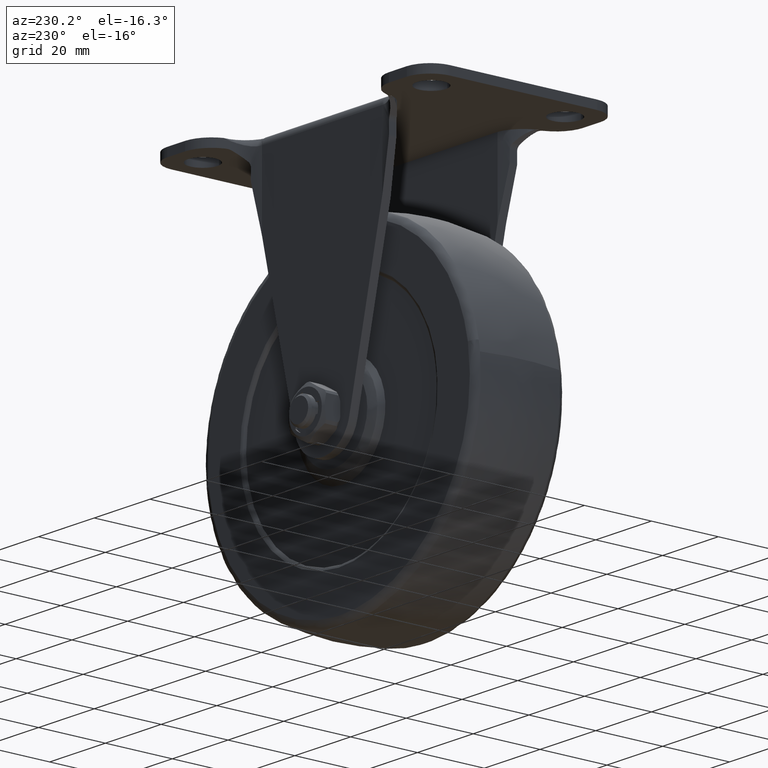
[diagram: clean part render]
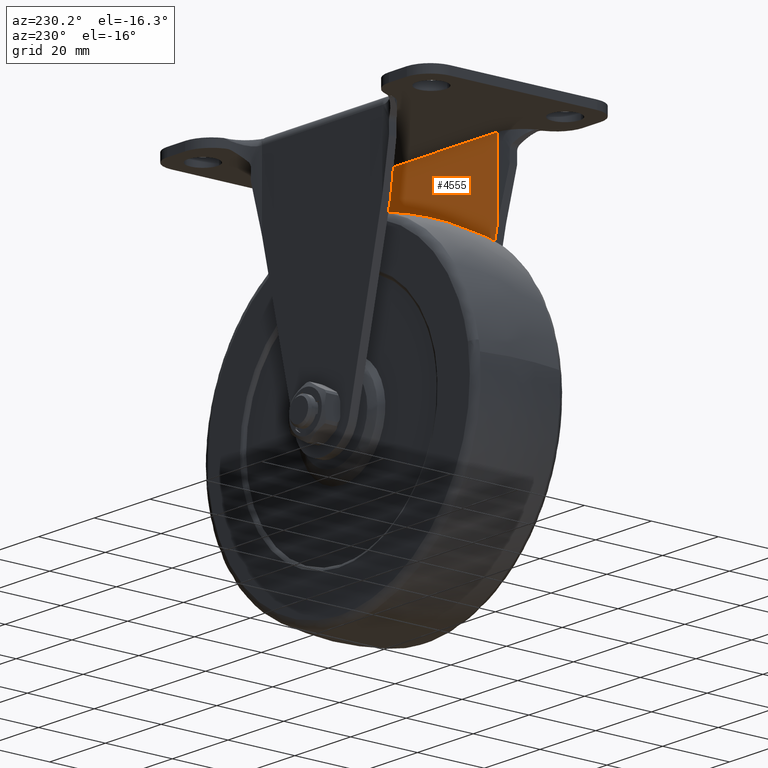
[diagram: same view with one face highlighted and labeled with its STEP entity id]
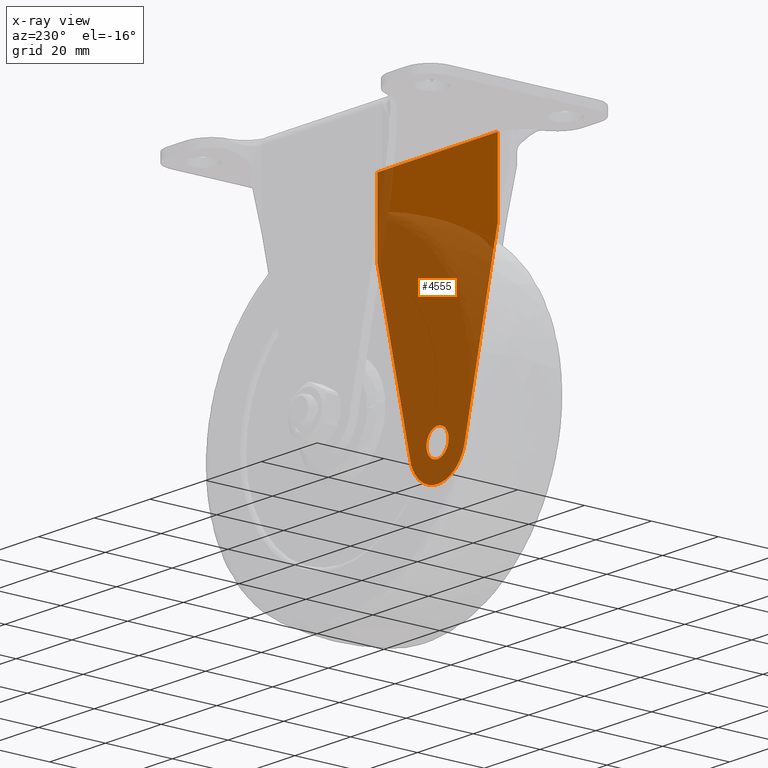
[diagram: x-ray of the same camera — body ghosted, the highlighted face saturated]
A machine part, auxiliary view. The second image highlights one B-rep face of the part: STEP entity #4555.
The next image is the same camera in x-ray: the body ghosted, the highlighted face saturated — about 74% of this face is hidden behind the body in this view.
In plain terms, the highlighted face is a freeform B-spline surface patch.
Its self-contained STEP definition (entity closure, byte-faithful):
#2337=CARTESIAN_POINT('',(3.972038105429503,-16.0,-0.472136938837739));
#2338=VERTEX_POINT('',#2337);
#2339=CARTESIAN_POINT('',(0.0,-16.0,3.999999999999885));
#2340=VERTEX_POINT('',#2339);
#2341=CARTESIAN_POINT('',(3.972038105429504,-16.0,-0.472136938837739));
#2342=CARTESIAN_POINT('',(3.999999999999885,-16.0,-0.236896478820580));
#2343=CARTESIAN_POINT('',(3.999999999999885,-16.0,0.0));
#2344=CARTESIAN_POINT('',(3.999999999999885,-15.999999999999998,3.999999999999885));
#2345=CARTESIAN_POINT('',(0.0,-16.0,3.999999999999885));
#2353=(BOUNDED_CURVE()B_SPLINE_CURVE(2,(#2341,#2342,#2343,#2344,#2345),.UNSPECIFIED.,.F.,.U.)B_SPLINE_CURVE_WITH_KNOTS((3,2,3),(0.229562473497713,0.250000000000000,0.500000000000000),.UNSPECIFIED.)CURVE()GEOMETRIC_REPRESENTATION_ITEM()RATIONAL_B_SPLINE_CURVE((0.956026754152739,0.976055948312639,1.0,0.707106781186548,1.0))REPRESENTATION_ITEM(''));
#2354=EDGE_CURVE('',#2338,#2340,#2353,.T.);
#2395=CARTESIAN_POINT('',(-3.992539214326631,-16.0,0.244193820689731));
#2396=VERTEX_POINT('',#2395);
#2402=CARTESIAN_POINT('',(0.0,-16.0,3.999999999999885));
#2403=CARTESIAN_POINT('',(-3.762824904879666,-15.999999999999995,3.999999999999884));
#2404=CARTESIAN_POINT('',(-3.992539214326631,-16.0,0.244193820689731));
#2412=(BOUNDED_CURVE()B_SPLINE_CURVE(2,(#2402,#2403,#2404),.UNSPECIFIED.,.F.,.U.)B_SPLINE_CURVE_WITH_KNOTS((3,3),(0.500000000000000,0.739332991409302),.UNSPECIFIED.)CURVE()GEOMETRIC_REPRESENTATION_ITEM()RATIONAL_B_SPLINE_CURVE((1.0,0.719603959111508,0.976072104184359))REPRESENTATION_ITEM(''));
#2413=EDGE_CURVE('',#2340,#2396,#2412,.T.);
#2436=CARTESIAN_POINT('',(0.0,-16.0,-3.999999999999885));
#2437=VERTEX_POINT('',#2436);
#2438=CARTESIAN_POINT('',(0.0,-16.0,-3.999999999999885));
#2439=CARTESIAN_POINT('',(3.552698103425767,-15.999999999999998,-3.999999999999885));
#2440=CARTESIAN_POINT('',(3.972038105429504,-16.000000000000004,-0.472136938837739));
#2448=(BOUNDED_CURVE()B_SPLINE_CURVE(2,(#2438,#2439,#2440),.UNSPECIFIED.,.F.,.U.)B_SPLINE_CURVE_WITH_KNOTS((3,3),(0.0,0.229562473497713),.UNSPECIFIED.)CURVE()GEOMETRIC_REPRESENTATION_ITEM()RATIONAL_B_SPLINE_CURVE((1.0,0.731050832873908,0.956026754152739))REPRESENTATION_ITEM(''));
#2449=EDGE_CURVE('',#2437,#2338,#2448,.T.);
#2451=CARTESIAN_POINT('',(-3.992539214326631,-15.999999999999996,0.244193820689731));
#2452=CARTESIAN_POINT('',(-3.999999999999884,-16.0,0.122210714798489));
#2453=CARTESIAN_POINT('',(-3.999999999999885,-16.0,0.0));
#2454=CARTESIAN_POINT('',(-3.999999999999885,-15.999999999999998,-3.999999999999885));
#2455=CARTESIAN_POINT('',(0.0,-16.0,-3.999999999999885));
#2463=(BOUNDED_CURVE()B_SPLINE_CURVE(2,(#2451,#2452,#2453,#2454,#2455),.UNSPECIFIED.,.F.,.U.)B_SPLINE_CURVE_WITH_KNOTS((3,2,3),(0.739332991409302,0.750000000000000,1.0),.UNSPECIFIED.)CURVE()GEOMETRIC_REPRESENTATION_ITEM()RATIONAL_B_SPLINE_CURVE((0.976072104184359,0.987502822075039,1.0,0.707106781186548,1.0))REPRESENTATION_ITEM(''));
#2464=EDGE_CURVE('',#2396,#2437,#2463,.T.);
#4439=CARTESIAN_POINT('',(-21.590256900299050,-16.0,47.909585734529401));
#4440=VERTEX_POINT('',#4439);
#4475=CARTESIAN_POINT('',(-21.590256900299050,-16.0,69.499995999999996));
#4476=VERTEX_POINT('',#4475);
#4490=CARTESIAN_POINT('',(-21.590256900299050,-16.0,69.499995999999996));
#4491=CARTESIAN_POINT('',(-21.590256900299050,-16.0,47.909585734529401));
#4492=QUASI_UNIFORM_CURVE('',1,(#4490,#4491),.UNSPECIFIED.,.F.,.U.);
#4493=EDGE_CURVE('',#4476,#4440,#4492,.T.);
#4498=CARTESIAN_POINT('',(-23.747124291642240,-16.0,73.471016556102356));
#4499=CARTESIAN_POINT('',(-23.747124291642240,-16.0,-13.971019063882610));
#4500=CARTESIAN_POINT('',(23.747124677705969,-16.0,73.471016556102356));
#4501=CARTESIAN_POINT('',(23.747124677705969,-16.0,-13.971019063882610));
#4502=B_SPLINE_SURFACE_WITH_KNOTS('',1,1,((#4498,#4500),(#4499,#4501)),.UNSPECIFIED.,.F.,.F.,.U.,(2,2),(2,2),(0.0,87.442035619984964),(0.0,47.494248969348213),.UNSPECIFIED.);
#4503=CARTESIAN_POINT('',(21.590256900298900,-16.0,47.909585734528612));
#4504=VERTEX_POINT('',#4503);
#4505=CARTESIAN_POINT('',(9.732252464196970,-16.0,-2.298527566315305));
#4506=VERTEX_POINT('',#4505);
#4507=CARTESIAN_POINT('',(21.590256900298900,-16.0,47.909585734528612));
#4508=CARTESIAN_POINT('',(9.732252464196970,-16.0,-2.298527566315305));
#4509=QUASI_UNIFORM_CURVE('',1,(#4507,#4508),.UNSPECIFIED.,.F.,.U.);
#4510=EDGE_CURVE('',#4504,#4506,#4509,.T.);
#4511=ORIENTED_EDGE('',*,*,#4510,.T.);
#4512=CARTESIAN_POINT('',(-9.732252464196970,-16.0,-2.298527566315295));
#4513=VERTEX_POINT('',#4512);
#4514=CARTESIAN_POINT('',(9.732252464196970,-16.0,-2.298527566315303));
#4515=CARTESIAN_POINT('',(7.913343065765025,-15.999999999999995,-9.999992821498069));
#4516=CARTESIAN_POINT('',(0.0,-16.0,-9.999992821498069));
#4517=CARTESIAN_POINT('',(-7.913343065765026,-15.999999999999995,-9.999992821498070));
#4518=CARTESIAN_POINT('',(-9.732252464196970,-16.0,-2.298527566315299));
#4526=(BOUNDED_CURVE()B_SPLINE_CURVE(2,(#4514,#4515,#4516,#4517,#4518),.UNSPECIFIED.,.F.,.U.)B_SPLINE_CURVE_WITH_KNOTS((3,2,3),(0.0,0.500000000000000,1.0),.UNSPECIFIED.)CURVE()GEOMETRIC_REPRESENTATION_ITEM()RATIONAL_B_SPLINE_CURVE((1.0,0.784172645047544,1.0,0.784172645047544,1.0))REPRESENTATION_ITEM(''));
#4527=EDGE_CURVE('',#4506,#4513,#4526,.T.);
#4528=ORIENTED_EDGE('',*,*,#4527,.T.);
#4529=CARTESIAN_POINT('',(-9.732252464196970,-16.0,-2.298527566315295));
#4530=CARTESIAN_POINT('',(-21.590256900299050,-16.0,47.909585734529401));
#4531=QUASI_UNIFORM_CURVE('',1,(#4529,#4530),.UNSPECIFIED.,.F.,.U.);
#4532=EDGE_CURVE('',#4513,#4440,#4531,.T.);
#4533=ORIENTED_EDGE('',*,*,#4532,.T.);
#4534=ORIENTED_EDGE('',*,*,#4493,.F.);
#4535=CARTESIAN_POINT('',(21.590256900298900,-16.0,69.499995999999996));
#4536=VERTEX_POINT('',#4535);
#4537=CARTESIAN_POINT('',(21.590256900298900,-16.0,69.499995999999996));
#4538=CARTESIAN_POINT('',(-21.590256900299050,-16.0,69.499995999999996));
#4539=QUASI_UNIFORM_CURVE('',1,(#4537,#4538),.UNSPECIFIED.,.F.,.U.);
#4540=EDGE_CURVE('',#4536,#4476,#4539,.T.);
#4541=ORIENTED_EDGE('',*,*,#4540,.F.);
#4542=CARTESIAN_POINT('',(21.590256900298900,-16.0,69.499995999999996));
#4543=CARTESIAN_POINT('',(21.590256900298900,-16.0,47.909585734528612));
#4544=QUASI_UNIFORM_CURVE('',1,(#4542,#4543),.UNSPECIFIED.,.F.,.U.);
#4545=EDGE_CURVE('',#4536,#4504,#4544,.T.);
#4546=ORIENTED_EDGE('',*,*,#4545,.T.);
#4547=EDGE_LOOP('',(#4511,#4528,#4533,#4534,#4541,#4546));
#4548=FACE_OUTER_BOUND('',#4547,.T.);
#4549=ORIENTED_EDGE('',*,*,#2413,.T.);
#4550=ORIENTED_EDGE('',*,*,#2464,.T.);
#4551=ORIENTED_EDGE('',*,*,#2449,.T.);
#4552=ORIENTED_EDGE('',*,*,#2354,.T.);
#4553=EDGE_LOOP('',(#4549,#4550,#4551,#4552));
#4554=FACE_BOUND('',#4553,.T.);
#4555=ADVANCED_FACE('',(#4548,#4554),#4502,.F.);